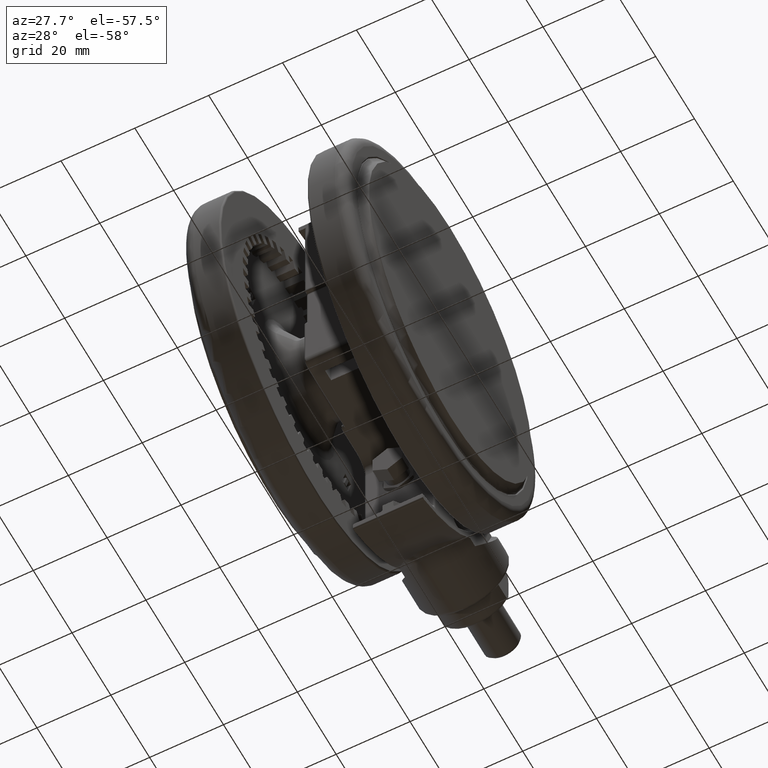
[diagram: clean part render]
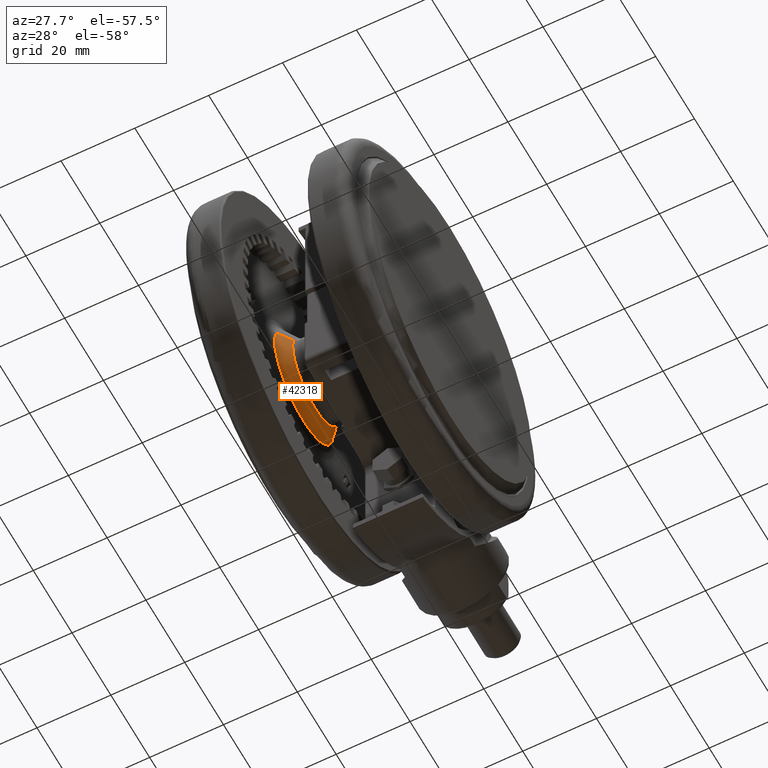
[diagram: same view with one face highlighted and labeled with its STEP entity id]
A machine part, auxiliary view. The second image highlights one B-rep face of the part: STEP entity #42318.
In plain terms, the highlighted conical surface has half-angle 47.726 deg.
Its self-contained STEP definition (entity closure, byte-faithful):
#57 = DIRECTION ( 'NONE',  ( -0.2102890888778420600, -0.7094292151554814100, -0.6726727939963119700 ) ) ;
#492 = VERTEX_POINT ( 'NONE', #40558 ) ;
#1087 = EDGE_CURVE ( 'NONE', #23494, #492, #26741, .T. ) ;
#2176 = LINE ( 'NONE', #34085, #21040 ) ;
#3082 = CARTESIAN_POINT ( 'NONE',  ( -3.312223172667238600, -11.17408372609446800, -36.59514037455210200 ) ) ;
#3775 = CARTESIAN_POINT ( 'NONE',  ( 3.312223172667268000, 11.17408372609445300, -36.59514037455210200 ) ) ;
#6991 = FACE_OUTER_BOUND ( 'NONE', #29252, .T. ) ;
#11777 = CARTESIAN_POINT ( 'NONE',  ( 4.282762040897117700, 14.44828416721273400, -39.69970036697966300 ) ) ;
#14554 = ORIENTED_EDGE ( 'NONE', *, *, #23691, .T. ) ;
#15547 = DIRECTION ( 'NONE',  ( -2.738200171890767100E-017, -1.985513823368855200E-016, -1.000000000000000000 ) ) ;
#15840 = VERTEX_POINT ( 'NONE', #3775 ) ;
#16587 = DIRECTION ( 'NONE',  ( -2.738200171890767100E-017, -1.985513823368855200E-016, -1.000000000000000000 ) ) ;
#16684 = AXIS2_PLACEMENT_3D ( 'NONE', #42781, #16587, #46717 ) ;
#17333 = EDGE_CURVE ( 'NONE', #36095, #15840, #36562, .T. ) ;
#17514 = VECTOR ( 'NONE', #28225, 1000.000000000000000 ) ;
#18912 = DIRECTION ( 'NONE',  ( 2.738200171890767100E-017, 1.985513823368855200E-016, 1.000000000000000000 ) ) ;
#19895 = EDGE_CURVE ( 'NONE', #36095, #492, #2176, .T. ) ;
#21040 = VECTOR ( 'NONE', #57, 1000.000000000000000 ) ;
#23494 = VERTEX_POINT ( 'NONE', #11777 ) ;
#23691 = EDGE_CURVE ( 'NONE', #15840, #23494, #37562, .T. ) ;
#24393 = CARTESIAN_POINT ( 'NONE',  ( 3.126172052068985100, 10.54642348385758400, -35.99999999999994300 ) ) ;
#25754 = ORIENTED_EDGE ( 'NONE', *, *, #19895, .F. ) ;
#26741 = CIRCLE ( 'NONE', #40275, 15.06967040367769600 ) ;
#28225 = DIRECTION ( 'NONE',  ( 0.2102890888778420900, 0.7094292151554811900, -0.6726727939963121900 ) ) ;
#29252 = EDGE_LOOP ( 'NONE', ( #25754, #32813, #14554, #47411 ) ) ;
#32813 = ORIENTED_EDGE ( 'NONE', *, *, #17333, .T. ) ;
#34085 = CARTESIAN_POINT ( 'NONE',  ( -3.126172052068955300, -10.54642348385759700, -35.99999999999994300 ) ) ;
#36095 = VERTEX_POINT ( 'NONE', #3082 ) ;
#36562 = CIRCLE ( 'NONE', #41665, 11.65465441200737700 ) ;
#37562 = LINE ( 'NONE', #24393, #17514 ) ;
#38109 = CARTESIAN_POINT ( 'NONE',  ( 1.410792968852564900E-014, -7.004820882903888400E-015, -36.59514037455210200 ) ) ;
#40275 = AXIS2_PLACEMENT_3D ( 'NONE', #41488, #18912, #45288 ) ;
#40558 = CARTESIAN_POINT ( 'NONE',  ( -4.282762040897086600, -14.44828416721274400, -39.69970036697966300 ) ) ;
#41488 = CARTESIAN_POINT ( 'NONE',  ( 1.374382499487215700E-014, -8.562789839355341000E-015, -39.69970036697966300 ) ) ;
#41665 = AXIS2_PLACEMENT_3D ( 'NONE', #38109, #15547, #41893 ) ;
#41893 = DIRECTION ( 'NONE',  ( 0.2841974592789973100, 0.9587657712597809100, 0.0000000000000000000 ) ) ;
#42318 = ADVANCED_FACE ( 'NONE', ( #6991 ), #43579, .T. ) ;
#42781 = CARTESIAN_POINT ( 'NONE',  ( 1.412422582328462500E-014, -6.886654938852065300E-015, -35.99999999999994300 ) ) ;
#43579 = CONICAL_SURFACE ( 'NONE', #16684, 11.00000000000000000, 0.8329812666744321700 ) ;
#45288 = DIRECTION ( 'NONE',  ( 0.2841974592789973700, 0.9587657712597809100, 0.0000000000000000000 ) ) ;
#46717 = DIRECTION ( 'NONE',  ( 0.2841974592789973700, 0.9587657712597810200, 0.0000000000000000000 ) ) ;
#47411 = ORIENTED_EDGE ( 'NONE', *, *, #1087, .T. ) ;